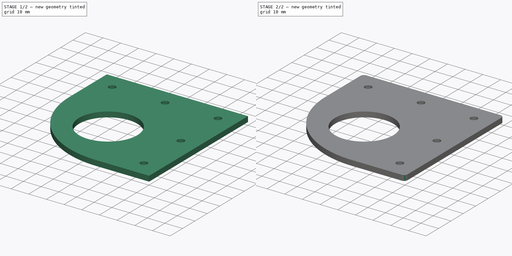
[diagram: build sequence overview — one tinted view per stage of 2, left to right]
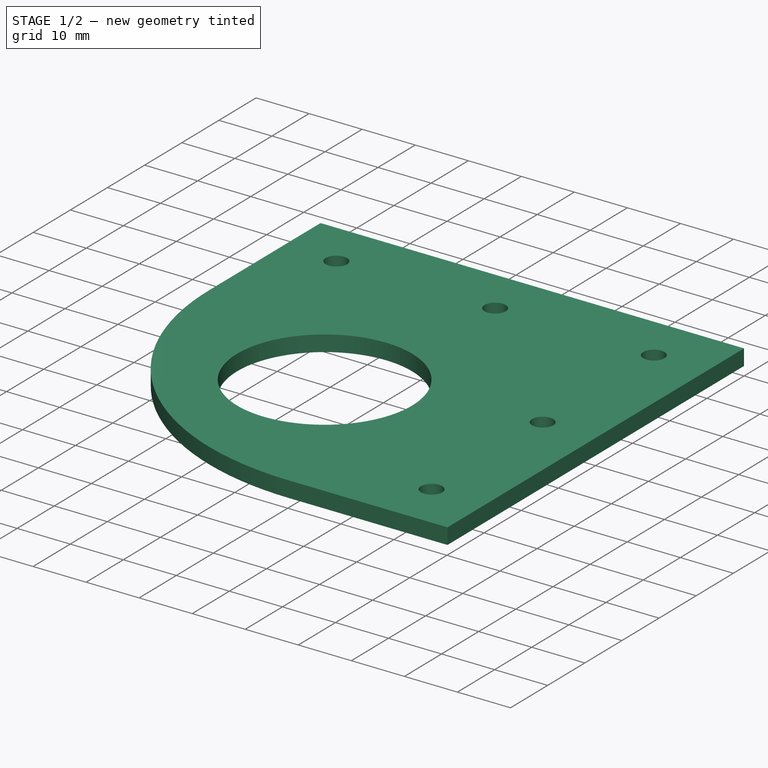
[diagram: stage 1 of 2 — iso view after this stage's code; geometry added in this stage tinted green]
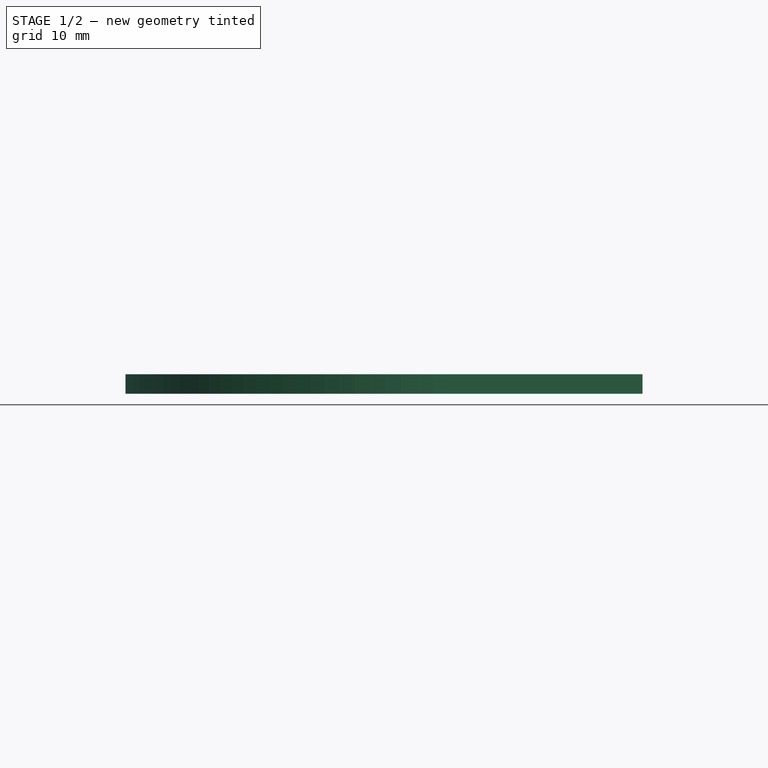
[diagram: stage 1 of 2 — front view after this stage's code; geometry added in this stage tinted green]
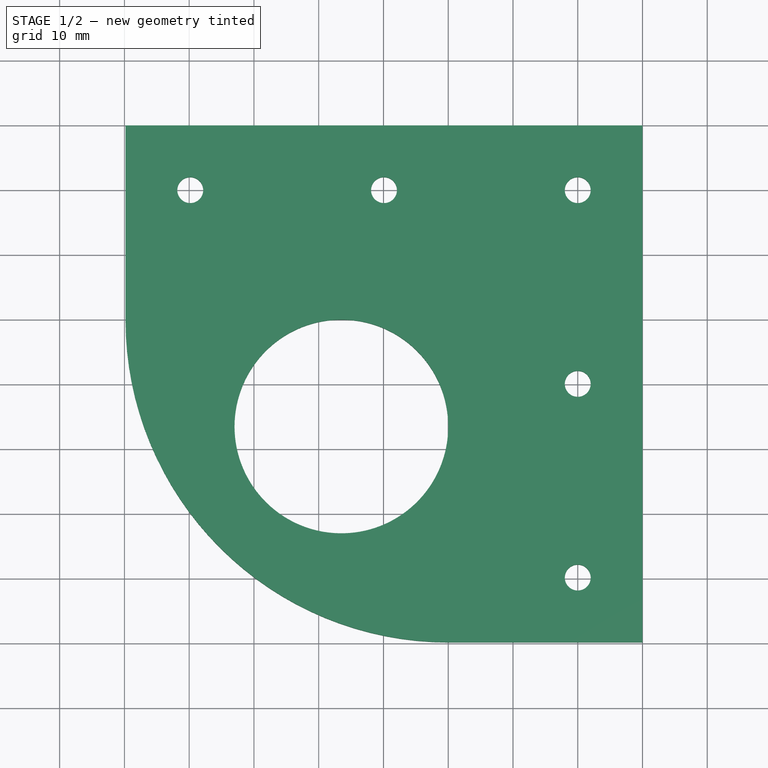
[diagram: stage 1 of 2 — top view after this stage's code; geometry added in this stage tinted green]
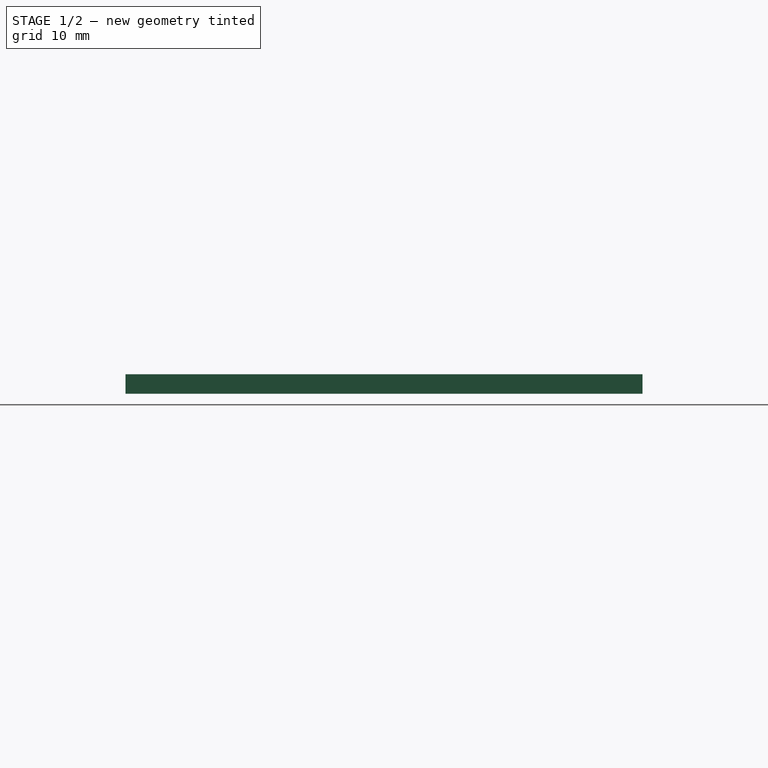
[diagram: stage 1 of 2 — right view after this stage's code; geometry added in this stage tinted green]
FCSTD DOCUMENT  (FreeCAD 0.22R38127 (Git))
Label: upper
License: All rights reserved
LicenseURL: http://en.wikipedia.org/wiki/All_rights_reserved
objects: Sketcher::SketchObject×1, PartDesign::Pad×1, PartDesign::Fillet×1, PartDesign::Body×1
note: 6 computed .brp shape members not serialized (recipe doc carries the construction recipe); baked Part::Feature solids carry a one-line shape summary decoded from their .brp

FEATURE [Sketcher::SketchObject] Sketch
  AttachmentSupport = -> [XY_Plane]
  FullyConstrained = true
  MapMode = 5
  sketch-geometry (18):
    g0: Circle CenterX=-16.5 CenterY=-16.5 CenterZ=0 NormalX=0 NormalY=0 NormalZ=1 AngleXU=0 Radius=16.5
    g1: LineSegment StartX=30 StartY=0 StartZ=0 EndX=30 EndY=-49.8345 EndZ=0
    g2: LineSegment StartX=30 StartY=-49.8345 StartZ=0 EndX=-1.42e-14 EndY=-49.8345 EndZ=0
    g3: ArcOfCircle CenterX=-6.1e-15 CenterY=-2e-15 CenterZ=0 NormalX=0 NormalY=0 NormalZ=1 AngleXU=0 Radius=49.8345 StartAngle=3.14159 EndAngle=4.71239
    g4: LineSegment StartX=64.4837 StartY=64.4837 StartZ=0 EndX=-66.908 EndY=-66.908 EndZ=0
    g5: GeomPoint X=-35.2383 Y=-35.2383 Z=0
    g6: GeomPoint X=-28.1673 Y=-28.1673 Z=0
    g7: Circle CenterX=-39.8345 CenterY=20 CenterZ=0 NormalX=0 NormalY=0 NormalZ=1 AngleXU=0 Radius=2
    g8: Circle CenterX=-9.91726 CenterY=20 CenterZ=0 NormalX=0 NormalY=0 NormalZ=1 AngleXU=0 Radius=2
    g9: Circle CenterX=20 CenterY=20 CenterZ=0 NormalX=0 NormalY=0 NormalZ=1 AngleXU=0 Radius=2
    g10: Circle CenterX=20 CenterY=-9.91726 CenterZ=0 NormalX=0 NormalY=0 NormalZ=1 AngleXU=0 Radius=2
    g11: Circle CenterX=20 CenterY=-39.8345 CenterZ=0 NormalX=0 NormalY=0 NormalZ=1 AngleXU=0 Radius=2
    g12: LineSegment StartX=-39.8345 StartY=20 StartZ=0 EndX=-49.8345 EndY=20 EndZ=0
    g13: LineSegment StartX=-49.8345 StartY=-1.8e-14 StartZ=0 EndX=-49.8345 EndY=20 EndZ=0
    g14: LineSegment StartX=-49.8345 StartY=20 StartZ=0 EndX=-49.8345 EndY=30 EndZ=0
    g15: LineSegment StartX=-49.8345 StartY=30 StartZ=0 EndX=30 EndY=30 EndZ=0
    g16: LineSegment StartX=30 StartY=30 StartZ=0 EndX=30 EndY=0 EndZ=0
    g17: LineSegment StartX=20 StartY=20 StartZ=0 EndX=30 EndY=20 EndZ=0
  constraints (46):
    c: Diameter(g0) = 33
    c: DistanceY(g0,g-1) = 16.5
    c: DistanceX(g0,g-1) = 16.5
    c: PointOnObject(g3,g-1)
    c: PointOnObject(g1,g-1)
    c: Vertical(g1)
    c: Coincident(g1,g2)
    c: PointOnObject(g2,g-2)
    c: Horizontal(g2)
    c: Tangent(g3,g2) = 1.5708
    c: PointOnObject(g0,g4)
    c: PointOnObject(g3,g4)
    c: PointOnObject(g5,g4)
    c: PointOnObject(g6,g4)
    c: PointOnObject(g6,g0)
    c: PointOnObject(g5,g3)
    c: Distance(g5,g6) = 10
    c: PointOnObject(g9,g4)
    c: Symmetric(g11,g7,g4)
    c: Symmetric(g10,g8,g4)
    c: Horizontal(g9,g8)
    c: Equal(g7,g8)
    c: Equal(g8,g9)
    c: Equal(g9,g10)
    c: Equal(g10,g11)
    c: Diameter(g7) = 4
    c: Symmetric(g7,g9,g8)
    c: DistanceY(g-1,g7) = 20
    c: Block(g4)
    c: DistanceY(g3,g12) = 20
    c: Tangent(g3,g13) = 1.5708
    c: Coincident(g13,g12)
    c: Coincident(g13,g14)
    c: Vertical(g14)
    c: Coincident(g14,g15)
    c: PointOnObject(g15,g4)
    c: Horizontal(g15)
    c: Coincident(g16,g1)
    c: Vertical(g16)
    c: DistanceY(g14,g14) = 10
    c: Coincident(g16,g15)
    c: Coincident(g17,g9)
    c: PointOnObject(g17,g16)
    c: Horizontal(g17)
    c: Equal(g17,g12)
    c: Coincident(g7,g12)
FEATURE [PartDesign::Pad] Pad
  Direction = (0,0,1)
  Length = 3
  Length2 = 10
  Profile = -> Sketch
  ReferenceAxis = -> Sketch [N_Axis]
  Suppressed = false
  Type = 0
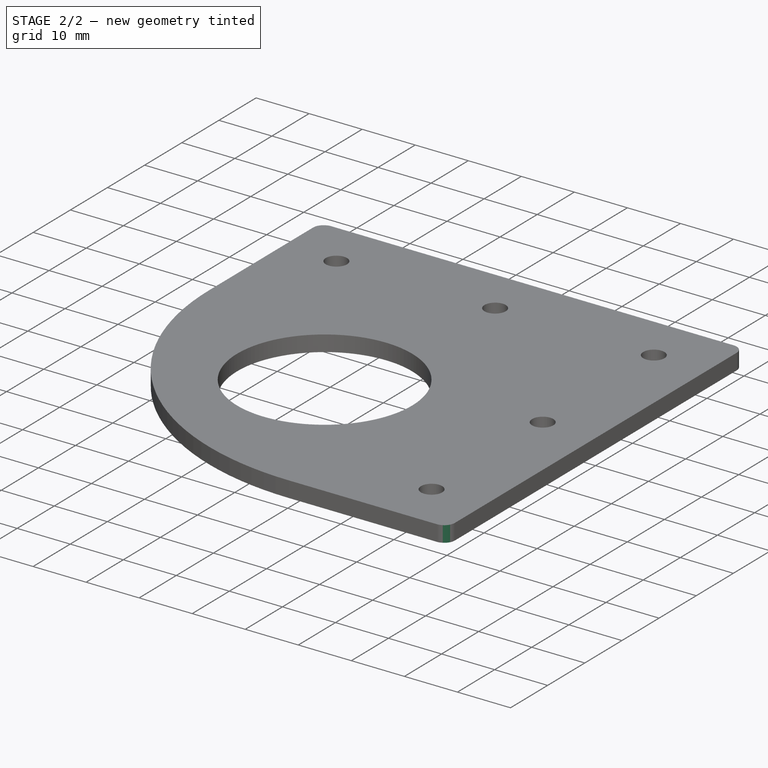
[diagram: stage 2 of 2 — iso view after this stage's code; geometry added in this stage tinted green]
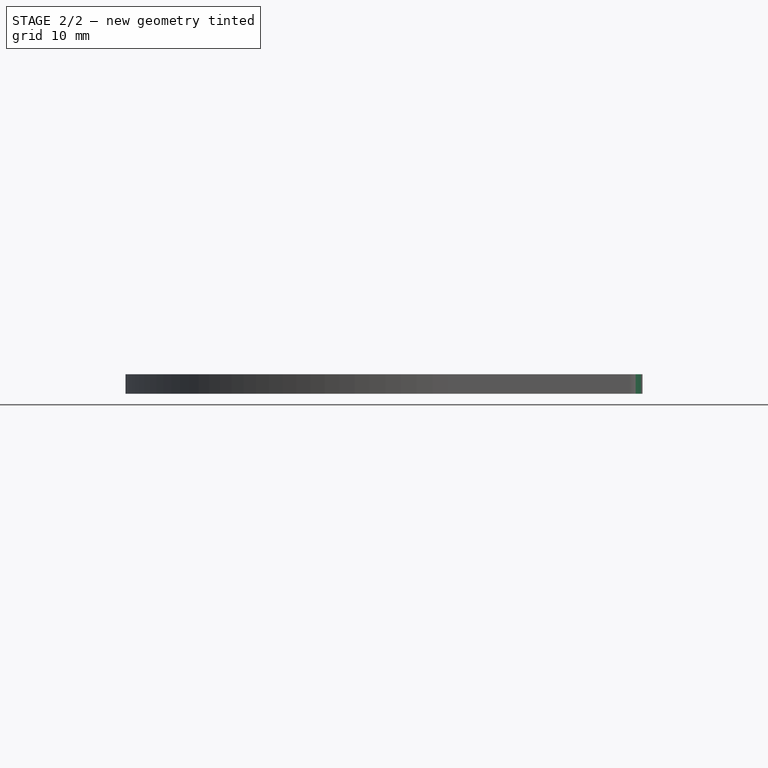
[diagram: stage 2 of 2 — front view after this stage's code; geometry added in this stage tinted green]
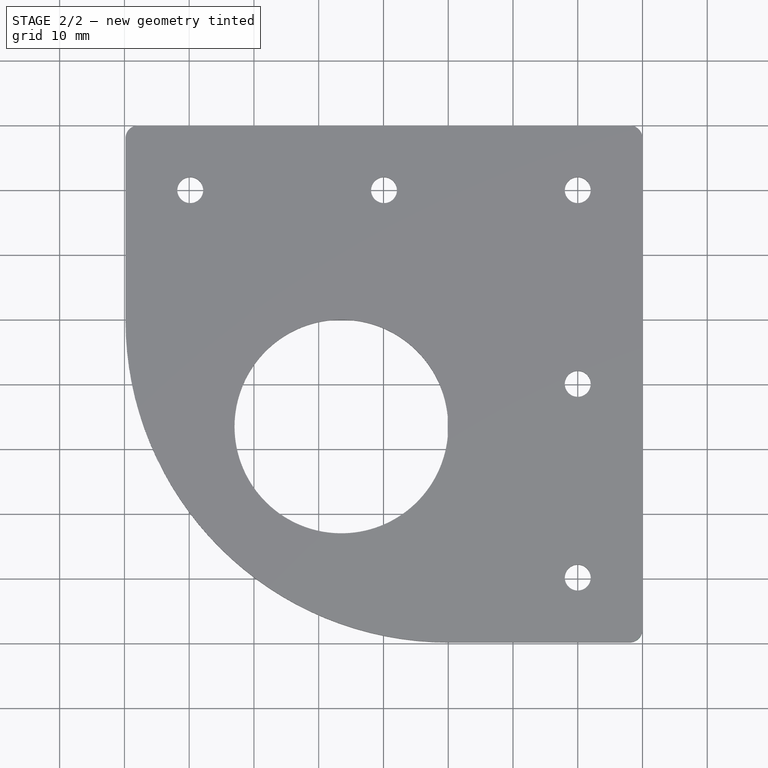
[diagram: stage 2 of 2 — top view after this stage's code; geometry added in this stage tinted green]
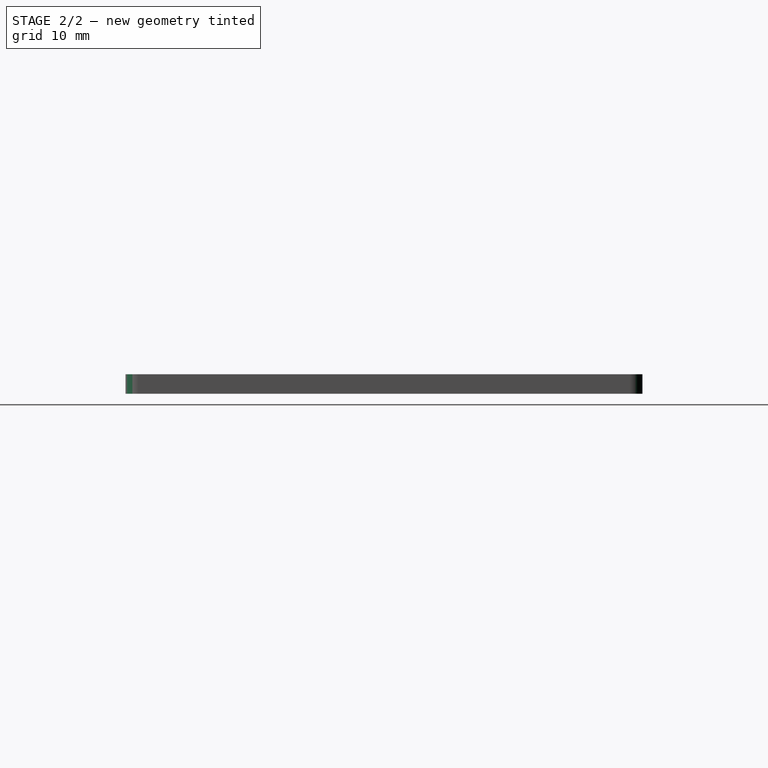
[diagram: stage 2 of 2 — right view after this stage's code; geometry added in this stage tinted green]
FEATURE [PartDesign::Fillet] Fillet
  Base = -> Pad [Edge2,Edge17,Edge14]
  BaseFeature = -> Pad
  Radius = 2
  SupportTransform = false
  Suppressed = false
  UseAllEdges = false
FEATURE [PartDesign::Body] Body
  AllowCompound = false
  Group = -> [Sketch,Pad,Fillet]
  Origin = -> Origin
  Tip = -> Fillet
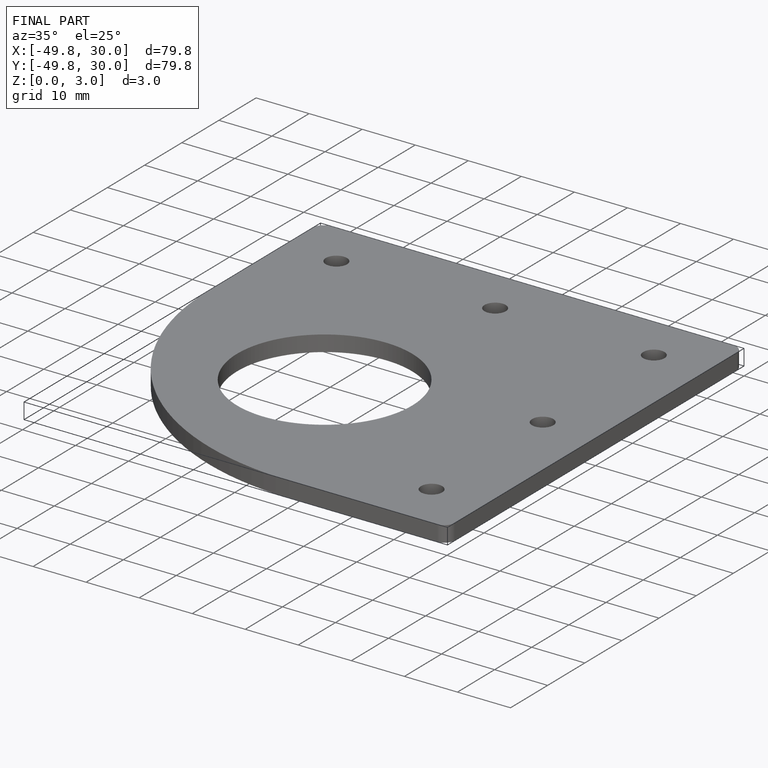
[diagram: finished part — iso view with bounding-box wireframe]
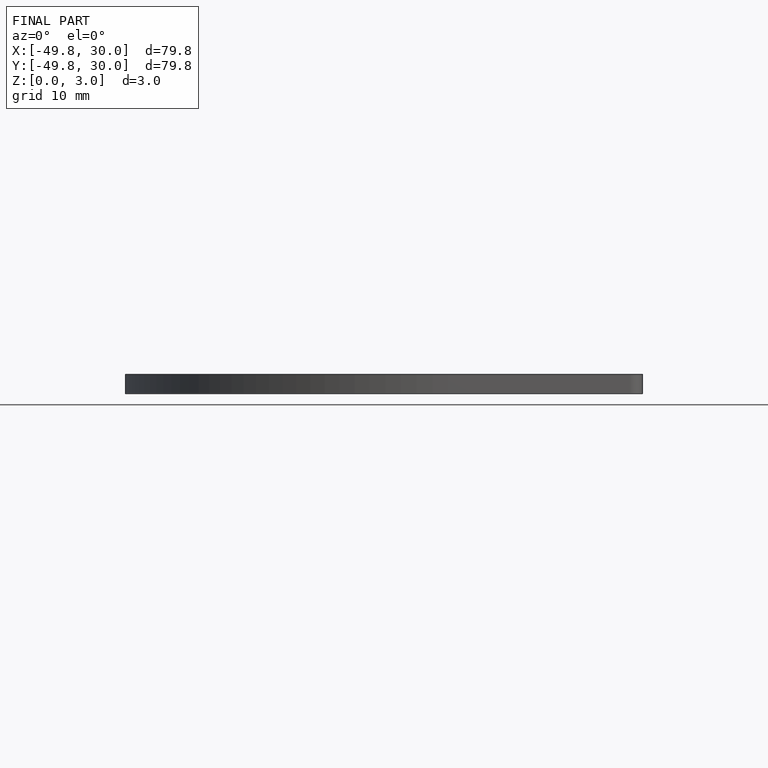
[diagram: finished part — front view with bounding-box wireframe]
